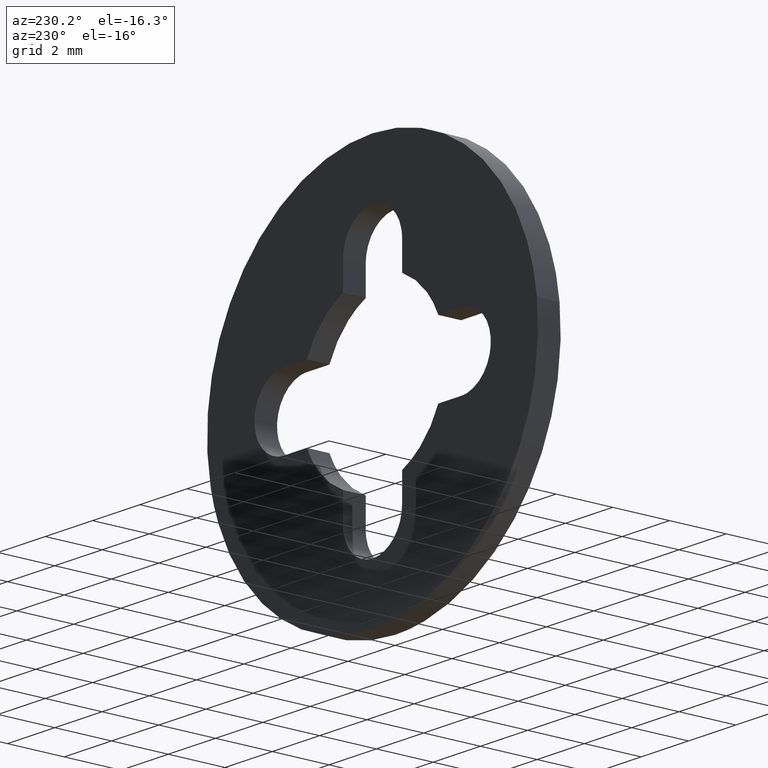
[diagram: clean part render]
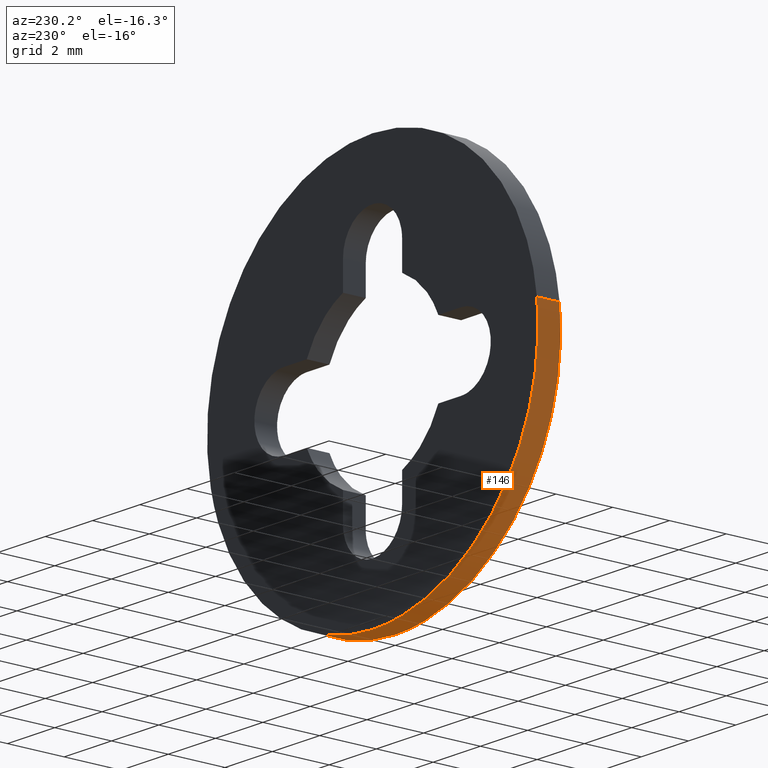
[diagram: same view with one face highlighted and labeled with its STEP entity id]
A machine part, auxiliary view. The second image highlights one B-rep face of the part: STEP entity #146.
In plain terms, the highlighted face is a freeform B-spline surface patch.
Its self-contained STEP definition (entity closure, byte-faithful):
#44=CARTESIAN_POINT('',(-6.951066684545665,0.820000000000024,0.826239642597309));
#45=CARTESIAN_POINT('',(-6.974713308140240,0.820000000000024,0.627303100465844));
#46=CARTESIAN_POINT('',(-6.986943588953067,0.820000000000024,0.427339776743999));
#47=CARTESIAN_POINT('',(-7.414283365697066,0.820000000000024,-6.559603812209068));
#48=CARTESIAN_POINT('',(-0.427339776743999,0.820000000000024,-6.986943588953067));
#49=CARTESIAN_POINT('',(6.559603812209068,0.820000000000024,-7.414283365697066));
#50=CARTESIAN_POINT('',(6.986943588953067,0.820000000000024,-0.427339776743999));
#51=CARTESIAN_POINT('',(-6.951066684545665,-0.020500000000001,0.826239642597309));
#52=CARTESIAN_POINT('',(-6.974713308140240,-0.020500000000001,0.627303100465844));
#53=CARTESIAN_POINT('',(-6.986943588953067,-0.020500000000001,0.427339776743999));
#54=CARTESIAN_POINT('',(-7.414283365697066,-0.020500000000001,-6.559603812209068));
#55=CARTESIAN_POINT('',(-0.427339776743999,-0.020500000000001,-6.986943588953067));
#56=CARTESIAN_POINT('',(6.559603812209068,-0.020500000000001,-7.414283365697066));
#57=CARTESIAN_POINT('',(6.986943588953067,-0.020500000000001,-0.427339776743999));
#65=(BOUNDED_SURFACE()B_SPLINE_SURFACE(2,1,((#44,#51),(#45,#52),(#46,#53),(#47,#54),(#48,#55),(#49,#56),(#50,#57)),.UNSPECIFIED.,.F.,.F.,.U.)B_SPLINE_SURFACE_WITH_KNOTS((3,2,2,3),(2,2),(0.0,0.463919189857867,12.061898936304530,23.659878682751181),(0.0,1.0),.UNSPECIFIED.)GEOMETRIC_REPRESENTATION_ITEM()RATIONAL_B_SPLINE_SURFACE(((0.977505800795127,0.977505800795127),(0.988284271247462,0.988284271247462),(1.0,1.0),(0.707106781186548,0.707106781186548),(1.0,1.0),(0.707106781186548,0.707106781186548),(1.0,1.0)))REPRESENTATION_ITEM('')SURFACE());
#66=CARTESIAN_POINT('',(-6.951067210688900,5.966703E-014,0.826235216185896));
#67=VERTEX_POINT('',#66);
#68=CARTESIAN_POINT('',(0.0,0.0,-7.0));
#69=VERTEX_POINT('',#68);
#70=CARTESIAN_POINT('',(-6.951067210688900,5.966703E-014,0.826235216185896));
#71=CARTESIAN_POINT('',(-7.0,0.0,0.414566600960148));
#72=CARTESIAN_POINT('',(-7.0,0.0,0.0));
#73=CARTESIAN_POINT('',(-6.999999999999999,0.0,-6.999999999999999));
#74=CARTESIAN_POINT('',(0.0,0.0,-7.0));
#82=(BOUNDED_CURVE()B_SPLINE_CURVE(2,(#70,#71,#72,#73,#74),.UNSPECIFIED.,.F.,.U.)B_SPLINE_CURVE_WITH_KNOTS((3,2,3),(0.229562581136241,0.250000000000000,0.500000000000000),.UNSPECIFIED.)CURVE()GEOMETRIC_REPRESENTATION_ITEM()RATIONAL_B_SPLINE_CURVE((0.956026965128767,0.976056074419019,1.0,0.707106781186547,1.0))REPRESENTATION_ITEM(''));
#83=EDGE_CURVE('',#67,#69,#82,.T.);
#84=ORIENTED_EDGE('',*,*,#83,.F.);
#85=CARTESIAN_POINT('',(-6.951067204199181,0.800000000000023,0.826235270783800));
#86=VERTEX_POINT('',#85);
#87=CARTESIAN_POINT('',(-6.951067204199181,0.800000000000023,0.826235270783800));
#88=CARTESIAN_POINT('',(-6.951067210688900,5.966703E-014,0.826235216185896));
#89=QUASI_UNIFORM_CURVE('',1,(#87,#88),.UNSPECIFIED.,.F.,.U.);
#90=EDGE_CURVE('',#86,#67,#89,.T.);
#91=ORIENTED_EDGE('',*,*,#90,.F.);
#92=CARTESIAN_POINT('',(0.0,0.800000000000023,-7.0));
#93=VERTEX_POINT('',#92);
#94=CARTESIAN_POINT('',(-6.951067204199181,0.800000000000023,0.826235270783800));
#95=CARTESIAN_POINT('',(-7.0,0.800000000000023,0.414566628547695));
#96=CARTESIAN_POINT('',(-7.0,0.800000000000023,0.0));
#97=CARTESIAN_POINT('',(-6.999999999999999,0.800000000000023,-6.999999999999999));
#98=CARTESIAN_POINT('',(0.0,0.800000000000023,-7.0));
#106=(BOUNDED_CURVE()B_SPLINE_CURVE(2,(#94,#95,#96,#97,#98),.UNSPECIFIED.,.F.,.U.)B_SPLINE_CURVE_WITH_KNOTS((3,2,3),(0.229562579808786,0.250000000000000,0.500000000000000),.UNSPECIFIED.)CURVE()GEOMETRIC_REPRESENTATION_ITEM()RATIONAL_B_SPLINE_CURVE((0.956026962526900,0.976056072863809,1.0,0.707106781186547,1.0))REPRESENTATION_ITEM(''));
#107=EDGE_CURVE('',#86,#93,#106,.T.);
#108=ORIENTED_EDGE('',*,*,#107,.T.);
#109=CARTESIAN_POINT('',(6.986943739989564,0.800000000000023,-0.427337307304794));
#110=VERTEX_POINT('',#109);
#111=CARTESIAN_POINT('',(0.0,0.800000000000023,-7.0));
#112=CARTESIAN_POINT('',(6.584944800046739,0.800000000000023,-6.999999999999999));
#113=CARTESIAN_POINT('',(6.986943739989564,0.800000000000023,-0.427337307304794));
#121=(BOUNDED_CURVE()B_SPLINE_CURVE(2,(#111,#112,#113),.UNSPECIFIED.,.F.,.U.)B_SPLINE_CURVE_WITH_KNOTS((3,3),(0.500000000000000,0.739333023226263),.UNSPECIFIED.)CURVE()GEOMETRIC_REPRESENTATION_ITEM()RATIONAL_B_SPLINE_CURVE((1.0,0.719603921835620,0.976072172374189))REPRESENTATION_ITEM(''));
#122=EDGE_CURVE('',#93,#110,#121,.T.);
#123=ORIENTED_EDGE('',*,*,#122,.T.);
#124=CARTESIAN_POINT('',(6.986943741874936,3.927761E-014,-0.427337276478874));
#125=VERTEX_POINT('',#124);
#126=CARTESIAN_POINT('',(6.986943739989564,0.800000000000023,-0.427337307304794));
#127=CARTESIAN_POINT('',(6.986943741874936,3.927761E-014,-0.427337276478874));
#128=QUASI_UNIFORM_CURVE('',1,(#126,#127),.UNSPECIFIED.,.F.,.U.);
#129=EDGE_CURVE('',#110,#125,#128,.T.);
#130=ORIENTED_EDGE('',*,*,#129,.T.);
#131=CARTESIAN_POINT('',(0.0,0.0,-7.0));
#132=CARTESIAN_POINT('',(6.584944829153351,0.0,-6.999999999999999));
#133=CARTESIAN_POINT('',(6.986943741874936,3.927761E-014,-0.427337276478874));
#141=(BOUNDED_CURVE()B_SPLINE_CURVE(2,(#131,#132,#133),.UNSPECIFIED.,.F.,.U.)B_SPLINE_CURVE_WITH_KNOTS((3,3),(0.500000000000000,0.739333023987528),.UNSPECIFIED.)CURVE()GEOMETRIC_REPRESENTATION_ITEM()RATIONAL_B_SPLINE_CURVE((1.0,0.719603920943743,0.976072174005725))REPRESENTATION_ITEM(''));
#142=EDGE_CURVE('',#69,#125,#141,.T.);
#143=ORIENTED_EDGE('',*,*,#142,.F.);
#144=EDGE_LOOP('',(#84,#91,#108,#123,#130,#143));
#145=FACE_OUTER_BOUND('',#144,.T.);
#146=ADVANCED_FACE('',(#145),#65,.T.);